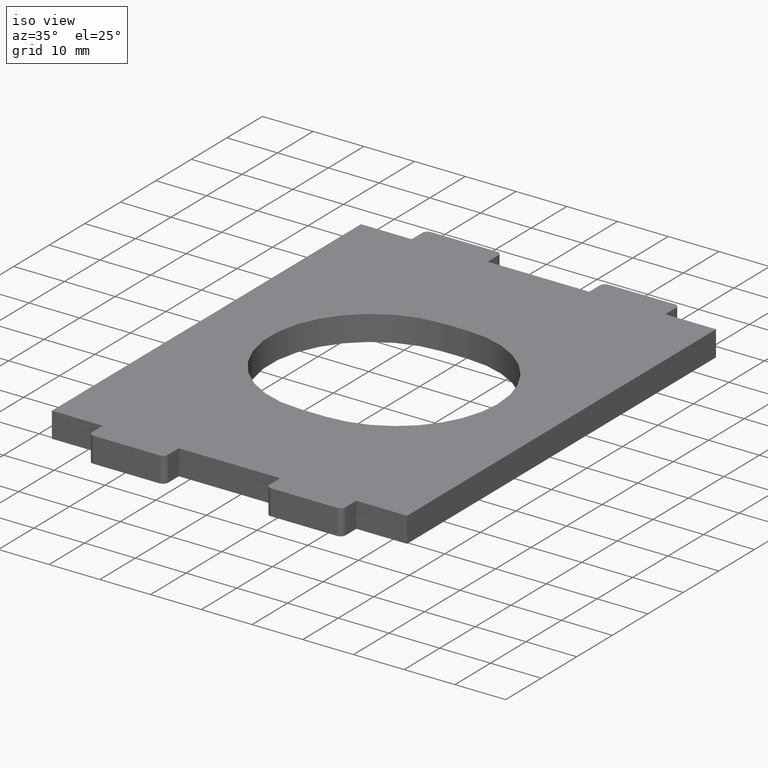
[diagram: clean part render]
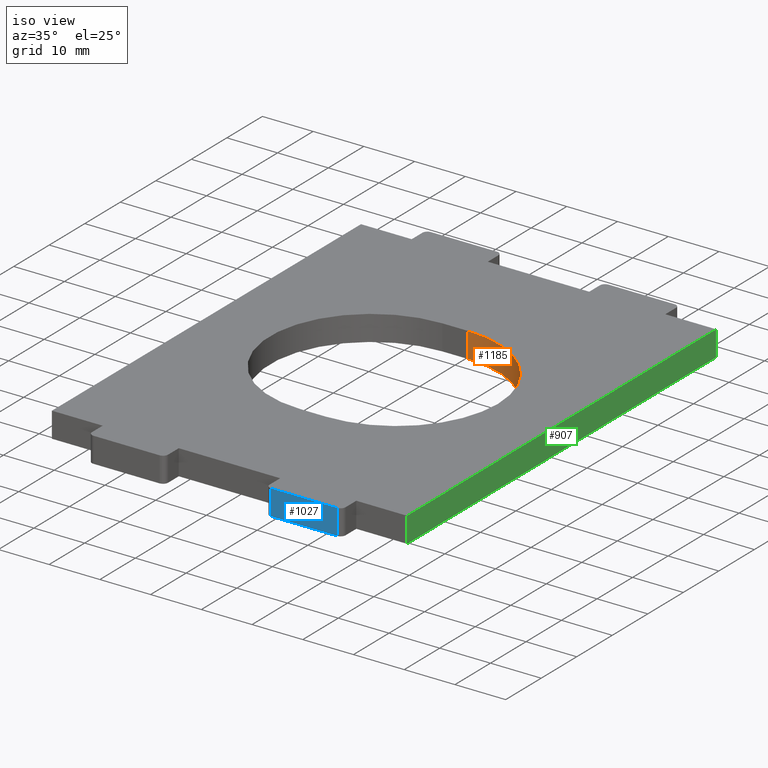
[diagram: same view with three faces highlighted in distinct colors, each labeled with its STEP entity id]
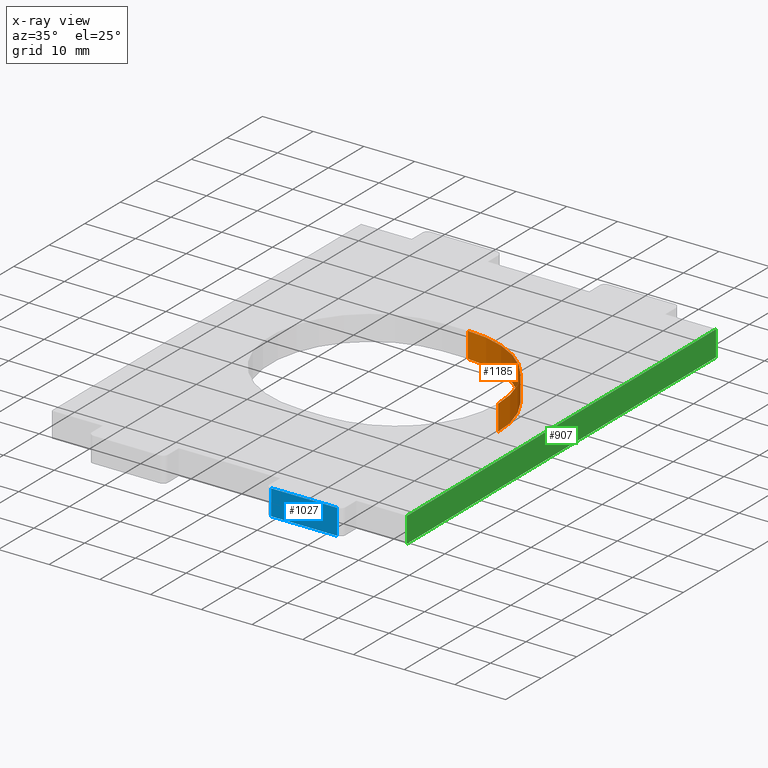
[diagram: x-ray of the same camera — body ghosted, the three highlighted faces saturated]
A machine part, iso view with three faces highlighted in distinct colors.
The next image is the same camera in x-ray (body ghosted, the three faces saturated) — at least one of them is partly hidden behind the body in this view.
Their STEP definitions:

[orange] entity #1185 — the highlighted cylindrical surface (partial cylindrical patch) has radius 20 mm, axis along (-0, -0, 1).
#14 = VERTEX_POINT ( 'NONE', #250 ) ;
#25 = CIRCLE ( 'NONE', #425, 19.99999999999999645 ) ;
#32 = ORIENTED_EDGE ( 'NONE', *, *, #340, .F. ) ;
#118 = EDGE_CURVE ( 'NONE', #14, #891, #141, .T. ) ;
#126 = CARTESIAN_POINT ( 'NONE',  ( 2.500000000000000000, -3.469446951953614189E-15, 2.500000000000000000 ) ) ;
#141 = LINE ( 'NONE', #803, #857 ) ;
#181 = FACE_OUTER_BOUND ( 'NONE', #567, .T. ) ;
#195 = CARTESIAN_POINT ( 'NONE',  ( 2.500000000000000000, -3.469446951953614189E-15, -2.500000000000000000 ) ) ;
#200 = DIRECTION ( 'NONE',  ( 1.000000000000000000, 0.000000000000000000, 0.000000000000000000 ) ) ;
#203 = CARTESIAN_POINT ( 'NONE',  ( 2.500000000000000000, -3.469446951953614189E-15, -2.500000000000000000 ) ) ;
#250 = CARTESIAN_POINT ( 'NONE',  ( 22.49999999999999645, -3.469446951953614189E-15, -2.500000000000000000 ) ) ;
#261 = CARTESIAN_POINT ( 'NONE',  ( 2.500000000000000000, 19.99999999999999645, -2.500000000000000000 ) ) ;
#290 = CYLINDRICAL_SURFACE ( 'NONE', #688, 19.99999999999999645 ) ;
#313 = CARTESIAN_POINT ( 'NONE',  ( 22.49999999999999645, -3.469446951953614189E-15, 2.500000000000000000 ) ) ;
#332 = ORIENTED_EDGE ( 'NONE', *, *, #582, .F. ) ;
#334 = DIRECTION ( 'NONE',  ( 1.000000000000000000, 0.000000000000000000, 0.000000000000000000 ) ) ;
#340 = EDGE_CURVE ( 'NONE', #14, #635, #25, .T. ) ;
#388 = CIRCLE ( 'NONE', #681, 19.99999999999999645 ) ;
#422 = EDGE_CURVE ( 'NONE', #891, #1002, #388, .T. ) ;
#425 = AXIS2_PLACEMENT_3D ( 'NONE', #203, #1129, #200 ) ;
#509 = ORIENTED_EDGE ( 'NONE', *, *, #422, .T. ) ;
#535 = LINE ( 'NONE', #261, #539 ) ;
#539 = VECTOR ( 'NONE', #1013, 1000.000000000000000 ) ;
#567 = EDGE_LOOP ( 'NONE', ( #32, #1155, #509, #332 ) ) ;
#582 = EDGE_CURVE ( 'NONE', #635, #1002, #535, .T. ) ;
#620 = DIRECTION ( 'NONE',  ( 0.000000000000000000, 0.000000000000000000, 1.000000000000000000 ) ) ;
#635 = VERTEX_POINT ( 'NONE', #1095 ) ;
#671 = DIRECTION ( 'NONE',  ( -0.000000000000000000, -0.000000000000000000, 1.000000000000000000 ) ) ;
#681 = AXIS2_PLACEMENT_3D ( 'NONE', #126, #620, #334 ) ;
#688 = AXIS2_PLACEMENT_3D ( 'NONE', #195, #671, #955 ) ;
#714 = DIRECTION ( 'NONE',  ( -0.000000000000000000, -0.000000000000000000, 1.000000000000000000 ) ) ;
#803 = CARTESIAN_POINT ( 'NONE',  ( 22.49999999999999645, -3.469446951953614189E-15, -2.500000000000000000 ) ) ;
#857 = VECTOR ( 'NONE', #714, 1000.000000000000000 ) ;
#891 = VERTEX_POINT ( 'NONE', #313 ) ;
#955 = DIRECTION ( 'NONE',  ( 1.000000000000000000, 0.000000000000000000, 0.000000000000000000 ) ) ;
#1002 = VERTEX_POINT ( 'NONE', #1176 ) ;
#1013 = DIRECTION ( 'NONE',  ( -0.000000000000000000, -0.000000000000000000, 1.000000000000000000 ) ) ;
#1095 = CARTESIAN_POINT ( 'NONE',  ( 2.500000000000000000, 19.99999999999999645, -2.500000000000000000 ) ) ;
#1129 = DIRECTION ( 'NONE',  ( 0.000000000000000000, 0.000000000000000000, 1.000000000000000000 ) ) ;
#1155 = ORIENTED_EDGE ( 'NONE', *, *, #118, .T. ) ;
#1176 = CARTESIAN_POINT ( 'NONE',  ( 2.500000000000000000, 19.99999999999999645, 2.500000000000000000 ) ) ;
#1185 = ADVANCED_FACE ( 'NONE', ( #181 ), #290, .F. ) ;

[blue] entity #1027 — the highlighted planar face has unit normal (0, -1, -0).
#38 = EDGE_LOOP ( 'NONE', ( #780, #146, #563, #843 ) ) ;
#72 = DIRECTION ( 'NONE',  ( 0.000000000000000000, -1.000000000000000000, -0.000000000000000000 ) ) ;
#123 = VECTOR ( 'NONE', #817, 1000.000000000000000 ) ;
#146 = ORIENTED_EDGE ( 'NONE', *, *, #552, .T. ) ;
#148 = LINE ( 'NONE', #1157, #123 ) ;
#154 = CARTESIAN_POINT ( 'NONE',  ( 11.00000000000001599, -47.49999999999998579, 2.500000000000000000 ) ) ;
#256 = DIRECTION ( 'NONE',  ( -0.000000000000000000, -0.000000000000000000, 1.000000000000000000 ) ) ;
#358 = VERTEX_POINT ( 'NONE', #948 ) ;
#376 = AXIS2_PLACEMENT_3D ( 'NONE', #918, #72, #1001 ) ;
#431 = CARTESIAN_POINT ( 'NONE',  ( 11.00000000000001599, -47.49999999999998579, -2.500000000000000000 ) ) ;
#440 = EDGE_CURVE ( 'NONE', #1171, #358, #921, .T. ) ;
#487 = CARTESIAN_POINT ( 'NONE',  ( 24.00000000000001421, -47.49999999999998579, -2.500000000000000000 ) ) ;
#552 = EDGE_CURVE ( 'NONE', #1171, #931, #148, .T. ) ;
#563 = ORIENTED_EDGE ( 'NONE', *, *, #636, .F. ) ;
#636 = EDGE_CURVE ( 'NONE', #1175, #931, #700, .T. ) ;
#692 = EDGE_CURVE ( 'NONE', #1175, #358, #932, .T. ) ;
#700 = B_SPLINE_CURVE_WITH_KNOTS ( 'NONE', 1,
 ( #737, #1100 ),
 .UNSPECIFIED., .F., .F.,
 ( 2, 2 ),
 ( 0.1500000000000000222, 0.4749999999999999778 ),
 .UNSPECIFIED. ) ;
#707 = VECTOR ( 'NONE', #256, 1000.000000000000000 ) ;
#724 = PLANE ( 'NONE',  #376 ) ;
#737 = CARTESIAN_POINT ( 'NONE',  ( 24.00000000000001421, -47.49999999999998579, -2.500000000000000000 ) ) ;
#780 = ORIENTED_EDGE ( 'NONE', *, *, #440, .F. ) ;
#817 = DIRECTION ( 'NONE',  ( -0.000000000000000000, -0.000000000000000000, -1.000000000000000000 ) ) ;
#843 = ORIENTED_EDGE ( 'NONE', *, *, #692, .T. ) ;
#918 = CARTESIAN_POINT ( 'NONE',  ( 25.00000000000001421, -47.49999999999998579, 0.000000000000000000 ) ) ;
#921 = B_SPLINE_CURVE_WITH_KNOTS ( 'NONE', 1,
 ( #154, #1061 ),
 .UNSPECIFIED., .F., .F.,
 ( 2, 2 ),
 ( 0.6500000000000000222, 0.9749999999999999778 ),
 .UNSPECIFIED. ) ;
#924 = FACE_OUTER_BOUND ( 'NONE', #38, .T. ) ;
#931 = VERTEX_POINT ( 'NONE', #431 ) ;
#932 = LINE ( 'NONE', #1193, #707 ) ;
#935 = CARTESIAN_POINT ( 'NONE',  ( 11.00000000000001599, -47.49999999999998579, 2.500000000000000000 ) ) ;
#948 = CARTESIAN_POINT ( 'NONE',  ( 24.00000000000001421, -47.49999999999998579, 2.500000000000000000 ) ) ;
#1001 = DIRECTION ( 'NONE',  ( 0.000000000000000000, 0.000000000000000000, -1.000000000000000000 ) ) ;
#1027 = ADVANCED_FACE ( 'NONE', ( #924 ), #724, .T. ) ;
#1061 = CARTESIAN_POINT ( 'NONE',  ( 24.00000000000001421, -47.49999999999998579, 2.500000000000000000 ) ) ;
#1100 = CARTESIAN_POINT ( 'NONE',  ( 11.00000000000001599, -47.49999999999998579, -2.500000000000000000 ) ) ;
#1157 = CARTESIAN_POINT ( 'NONE',  ( 11.00000000000001599, -47.49999999999998579, 0.000000000000000000 ) ) ;
#1171 = VERTEX_POINT ( 'NONE', #935 ) ;
#1175 = VERTEX_POINT ( 'NONE', #487 ) ;
#1193 = CARTESIAN_POINT ( 'NONE',  ( 24.00000000000001421, -47.49999999999998579, 0.000000000000000000 ) ) ;

[green] entity #907 — the highlighted planar face has unit normal (1, 0, -0).
#6 = VECTOR ( 'NONE', #397, 1000.000000000000000 ) ;
#69 = LINE ( 'NONE', #765, #108 ) ;
#101 = VERTEX_POINT ( 'NONE', #1159 ) ;
#108 = VECTOR ( 'NONE', #121, 1000.000000000000000 ) ;
#121 = DIRECTION ( 'NONE',  ( -1.595148023886719315E-16, 1.000000000000000000, -0.000000000000000000 ) ) ;
#122 = CARTESIAN_POINT ( 'NONE',  ( 35.00000000000000000, 43.50000000000001421, -2.500000000000000000 ) ) ;
#138 = FACE_OUTER_BOUND ( 'NONE', #436, .T. ) ;
#159 = LINE ( 'NONE', #533, #848 ) ;
#177 = ORIENTED_EDGE ( 'NONE', *, *, #1058, .T. ) ;
#248 = VECTOR ( 'NONE', #595, 1000.000000000000000 ) ;
#252 = EDGE_CURVE ( 'NONE', #815, #101, #69, .T. ) ;
#276 = AXIS2_PLACEMENT_3D ( 'NONE', #122, #500, #319 ) ;
#319 = DIRECTION ( 'NONE',  ( -1.595148023886719315E-16, 1.000000000000000000, 0.000000000000000000 ) ) ;
#389 = EDGE_CURVE ( 'NONE', #815, #1111, #481, .T. ) ;
#397 = DIRECTION ( 'NONE',  ( -1.595148023886719315E-16, 1.000000000000000000, -0.000000000000000000 ) ) ;
#408 = CARTESIAN_POINT ( 'NONE',  ( 35.00000000000000000, 43.50000000000001421, 2.500000000000000000 ) ) ;
#409 = EDGE_CURVE ( 'NONE', #1111, #957, #485, .T. ) ;
#436 = EDGE_LOOP ( 'NONE', ( #939, #1017, #1081, #177 ) ) ;
#481 = LINE ( 'NONE', #858, #248 ) ;
#485 = LINE ( 'NONE', #408, #6 ) ;
#500 = DIRECTION ( 'NONE',  ( 1.000000000000000000, 1.595148023886719315E-16, -0.000000000000000000 ) ) ;
#533 = CARTESIAN_POINT ( 'NONE',  ( 35.00000000000000000, 43.50000000000001421, -2.500000000000000000 ) ) ;
#595 = DIRECTION ( 'NONE',  ( 0.000000000000000000, 0.000000000000000000, 1.000000000000000000 ) ) ;
#612 = CARTESIAN_POINT ( 'NONE',  ( 35.00000000000000000, 43.50000000000001421, 2.500000000000000000 ) ) ;
#642 = CARTESIAN_POINT ( 'NONE',  ( 35.00000000000001421, -43.49999999999998579, 2.500000000000000000 ) ) ;
#765 = CARTESIAN_POINT ( 'NONE',  ( 35.00000000000000000, 43.50000000000001421, -2.500000000000000000 ) ) ;
#774 = CARTESIAN_POINT ( 'NONE',  ( 35.00000000000001421, -43.49999999999998579, -2.500000000000000000 ) ) ;
#800 = PLANE ( 'NONE',  #276 ) ;
#815 = VERTEX_POINT ( 'NONE', #774 ) ;
#848 = VECTOR ( 'NONE', #911, 1000.000000000000000 ) ;
#858 = CARTESIAN_POINT ( 'NONE',  ( 35.00000000000001421, -43.49999999999998579, -2.500000000000000000 ) ) ;
#907 = ADVANCED_FACE ( 'NONE', ( #138 ), #800, .T. ) ;
#911 = DIRECTION ( 'NONE',  ( 0.000000000000000000, 0.000000000000000000, 1.000000000000000000 ) ) ;
#939 = ORIENTED_EDGE ( 'NONE', *, *, #409, .F. ) ;
#957 = VERTEX_POINT ( 'NONE', #612 ) ;
#1017 = ORIENTED_EDGE ( 'NONE', *, *, #389, .F. ) ;
#1058 = EDGE_CURVE ( 'NONE', #101, #957, #159, .T. ) ;
#1081 = ORIENTED_EDGE ( 'NONE', *, *, #252, .T. ) ;
#1111 = VERTEX_POINT ( 'NONE', #642 ) ;
#1159 = CARTESIAN_POINT ( 'NONE',  ( 35.00000000000000000, 43.50000000000001421, -2.500000000000000000 ) ) ;